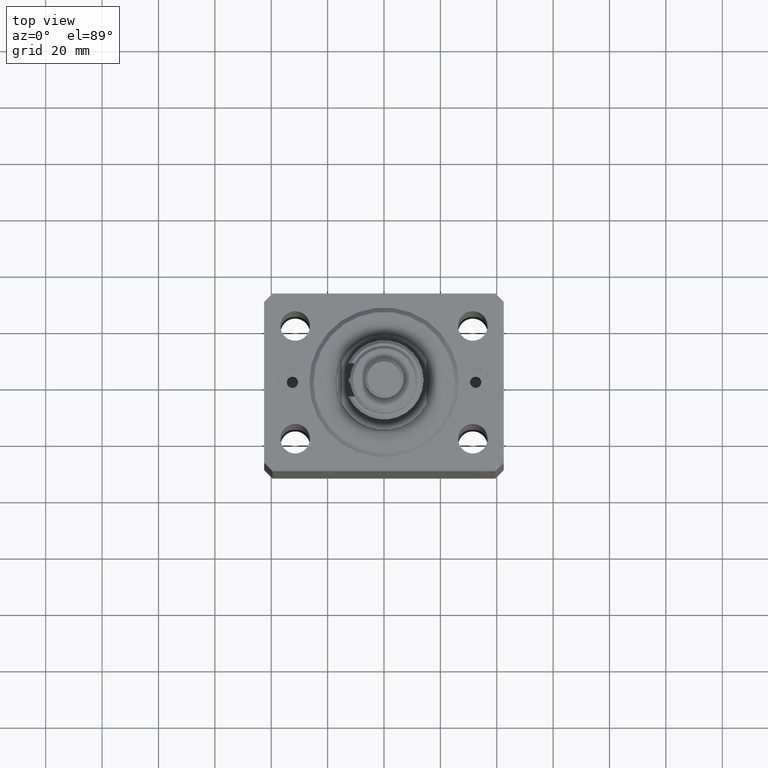
[diagram: clean part render]
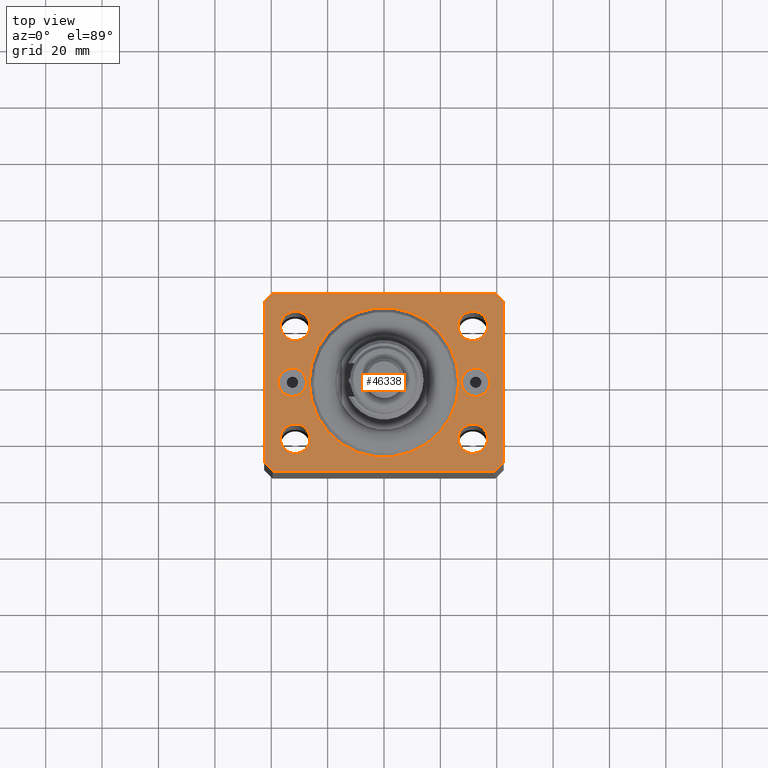
[diagram: same view with one face highlighted and labeled with its STEP entity id]
A machine part, top view. The second image highlights one B-rep face of the part: STEP entity #46338.
In plain terms, the highlighted planar face has unit normal (0, 0, 1).
Its self-contained STEP definition (entity closure, byte-faithful):
#8 = VERTEX_POINT ( 'NONE', #19630 ) ;
#310 = ORIENTED_EDGE ( 'NONE', *, *, #18814, .F. ) ;
#354 = AXIS2_PLACEMENT_3D ( 'NONE', #36166, #14008, #44030 ) ;
#397 = DIRECTION ( 'NONE',  ( 1.000000000000000000, 0.000000000000000000, 0.000000000000000000 ) ) ;
#399 = DIRECTION ( 'NONE',  ( 0.000000000000000000, 0.000000000000000000, 1.000000000000000000 ) ) ;
#455 = AXIS2_PLACEMENT_3D ( 'NONE', #32356, #399, #6638 ) ;
#482 = ORIENTED_EDGE ( 'NONE', *, *, #2937, .F. ) ;
#649 = FACE_BOUND ( 'NONE', #37424, .T. ) ;
#823 = ORIENTED_EDGE ( 'NONE', *, *, #25537, .F. ) ;
#1113 = FACE_BOUND ( 'NONE', #31430, .T. ) ;
#1142 = LINE ( 'NONE', #8542, #14847 ) ;
#1335 = CIRCLE ( 'NONE', #36356, 26.50000000000000355 ) ;
#1363 = CARTESIAN_POINT ( 'NONE',  ( 0.000000000000000000, 0.000000000000000000, 0.000000000000000000 ) ) ;
#1699 = ORIENTED_EDGE ( 'NONE', *, *, #39724, .F. ) ;
#1911 = DIRECTION ( 'NONE',  ( -1.000000000000000000, 8.783410004945795812E-17, 0.000000000000000000 ) ) ;
#2166 = CARTESIAN_POINT ( 'NONE',  ( 31.50000000000000000, 19.99999999999999289, 0.000000000000000000 ) ) ;
#2783 = AXIS2_PLACEMENT_3D ( 'NONE', #3201, #3896, #36556 ) ;
#2800 = ORIENTED_EDGE ( 'NONE', *, *, #35951, .T. ) ;
#2830 = DIRECTION ( 'NONE',  ( 1.000000000000000000, 0.000000000000000000, 0.000000000000000000 ) ) ;
#2937 = EDGE_CURVE ( 'NONE', #33450, #12164, #34560, .T. ) ;
#3023 = EDGE_CURVE ( 'NONE', #31788, #42480, #40152, .T. ) ;
#3201 = CARTESIAN_POINT ( 'NONE',  ( 32.50000000000000000, 0.000000000000000000, 0.000000000000000000 ) ) ;
#3250 = EDGE_CURVE ( 'NONE', #5897, #28921, #35981, .T. ) ;
#3323 = DIRECTION ( 'NONE',  ( 0.7071067811865483499, 0.7071067811865466846, 0.000000000000000000 ) ) ;
#3406 = DIRECTION ( 'NONE',  ( 1.000000000000000000, 0.000000000000000000, 0.000000000000000000 ) ) ;
#3649 = DIRECTION ( 'NONE',  ( -0.7071067811865471286, -0.7071067811865479058, 0.000000000000000000 ) ) ;
#3700 = EDGE_CURVE ( 'NONE', #19918, #16981, #17121, .T. ) ;
#3896 = DIRECTION ( 'NONE',  ( 0.000000000000000000, -0.000000000000000000, -1.000000000000000000 ) ) ;
#3935 = VERTEX_POINT ( 'NONE', #13954 ) ;
#4119 = VERTEX_POINT ( 'NONE', #42044 ) ;
#4765 = VERTEX_POINT ( 'NONE', #28039 ) ;
#5140 = DIRECTION ( 'NONE',  ( 1.000000000000000000, 0.000000000000000000, 0.000000000000000000 ) ) ;
#5470 = VECTOR ( 'NONE', #39626, 1000.000000000000000 ) ;
#5877 = VECTOR ( 'NONE', #43863, 1000.000000000000114 ) ;
#5897 = VERTEX_POINT ( 'NONE', #36055 ) ;
#6193 = ORIENTED_EDGE ( 'NONE', *, *, #3023, .T. ) ;
#6360 = CARTESIAN_POINT ( 'NONE',  ( -36.74999999999999289, -20.00000000000000355, 0.000000000000000000 ) ) ;
#6638 = DIRECTION ( 'NONE',  ( 1.000000000000000000, 0.000000000000000000, 0.000000000000000000 ) ) ;
#6734 = EDGE_CURVE ( 'NONE', #8, #5897, #37577, .T. ) ;
#7400 = ORIENTED_EDGE ( 'NONE', *, *, #12039, .F. ) ;
#7520 = CARTESIAN_POINT ( 'NONE',  ( -39.50000000000000711, 31.50000000000000000, 0.000000000000000000 ) ) ;
#7620 = CARTESIAN_POINT ( 'NONE',  ( 42.50000000000051870, 28.49999999999995381, 0.000000000000000000 ) ) ;
#8046 = DIRECTION ( 'NONE',  ( 0.000000000000000000, 0.000000000000000000, 1.000000000000000000 ) ) ;
#8281 = FACE_OUTER_BOUND ( 'NONE', #20400, .T. ) ;
#8542 = CARTESIAN_POINT ( 'NONE',  ( 42.50000000000000711, -28.50000000000000355, 0.000000000000000000 ) ) ;
#8561 = EDGE_LOOP ( 'NONE', ( #482, #7400 ) ) ;
#8571 = CARTESIAN_POINT ( 'NONE',  ( 26.25000000000000355, 19.99999999999999289, 0.000000000000000000 ) ) ;
#8646 = EDGE_CURVE ( 'NONE', #4765, #3935, #17116, .T. ) ;
#9044 = ORIENTED_EDGE ( 'NONE', *, *, #38149, .F. ) ;
#9942 = EDGE_CURVE ( 'NONE', #24635, #41375, #13387, .T. ) ;
#10808 = CARTESIAN_POINT ( 'NONE',  ( -39.50000000000000711, 31.50000000000000000, 0.000000000000000000 ) ) ;
#11030 = DIRECTION ( 'NONE',  ( 0.000000000000000000, 0.000000000000000000, 1.000000000000000000 ) ) ;
#11036 = LINE ( 'NONE', #10808, #31166 ) ;
#11382 = CARTESIAN_POINT ( 'NONE',  ( 31.49999999999999289, -20.00000000000000355, 0.000000000000000000 ) ) ;
#11395 = VERTEX_POINT ( 'NONE', #19695 ) ;
#11451 = ORIENTED_EDGE ( 'NONE', *, *, #44370, .T. ) ;
#11650 = DIRECTION ( 'NONE',  ( 8.886653596232072440E-15, 1.000000000000000000, 0.000000000000000000 ) ) ;
#11689 = AXIS2_PLACEMENT_3D ( 'NONE', #2166, #24093, #16708 ) ;
#11706 = CARTESIAN_POINT ( 'NONE',  ( 26.24999999999999645, -20.00000000000000355, 0.000000000000000000 ) ) ;
#11783 = CARTESIAN_POINT ( 'NONE',  ( 26.50000000000000355, 0.000000000000000000, 0.000000000000000000 ) ) ;
#11843 = DIRECTION ( 'NONE',  ( 0.000000000000000000, 0.000000000000000000, 1.000000000000000000 ) ) ;
#12039 = EDGE_CURVE ( 'NONE', #12164, #33450, #21024, .T. ) ;
#12106 = DIRECTION ( 'NONE',  ( 1.000000000000000000, 0.000000000000000000, -0.000000000000000000 ) ) ;
#12164 = VERTEX_POINT ( 'NONE', #19702 ) ;
#12602 = DIRECTION ( 'NONE',  ( 1.000000000000000000, 0.000000000000000000, 0.000000000000000000 ) ) ;
#13021 = EDGE_CURVE ( 'NONE', #41375, #24635, #27935, .T. ) ;
#13348 = DIRECTION ( 'NONE',  ( 1.000000000000000000, 0.000000000000000000, 0.000000000000000000 ) ) ;
#13387 = CIRCLE ( 'NONE', #37691, 5.249999999999997335 ) ;
#13645 = ORIENTED_EDGE ( 'NONE', *, *, #33832, .T. ) ;
#13954 = CARTESIAN_POINT ( 'NONE',  ( -37.50000000000000000, 6.123233995736768255E-16, 0.000000000000000000 ) ) ;
#13985 = CIRCLE ( 'NONE', #11689, 5.249999999999997335 ) ;
#13995 = ORIENTED_EDGE ( 'NONE', *, *, #3250, .T. ) ;
#14008 = DIRECTION ( 'NONE',  ( 0.000000000000000000, -0.000000000000000000, -1.000000000000000000 ) ) ;
#14410 = ORIENTED_EDGE ( 'NONE', *, *, #8646, .F. ) ;
#14689 = VERTEX_POINT ( 'NONE', #6360 ) ;
#14752 = ORIENTED_EDGE ( 'NONE', *, *, #20550, .T. ) ;
#14847 = VECTOR ( 'NONE', #11650, 1000.000000000000000 ) ;
#14861 = CARTESIAN_POINT ( 'NONE',  ( -42.50000000000000000, -28.50000000000000000, 0.000000000000000000 ) ) ;
#14969 = VERTEX_POINT ( 'NONE', #19662 ) ;
#15055 = CARTESIAN_POINT ( 'NONE',  ( -26.25000000000000000, 19.99999999999999645, 0.000000000000000000 ) ) ;
#15203 = FACE_BOUND ( 'NONE', #15483, .T. ) ;
#15483 = EDGE_LOOP ( 'NONE', ( #26340, #9044 ) ) ;
#16336 = DIRECTION ( 'NONE',  ( 0.000000000000000000, 0.000000000000000000, 1.000000000000000000 ) ) ;
#16708 = DIRECTION ( 'NONE',  ( 1.000000000000000000, 0.000000000000000000, 0.000000000000000000 ) ) ;
#16893 = CARTESIAN_POINT ( 'NONE',  ( -31.49999999999999289, -20.00000000000000355, 0.000000000000000000 ) ) ;
#16981 = VERTEX_POINT ( 'NONE', #38325 ) ;
#17116 = CIRCLE ( 'NONE', #23184, 5.000000000000000888 ) ;
#17121 = CIRCLE ( 'NONE', #354, 4.999999999999997335 ) ;
#17286 = AXIS2_PLACEMENT_3D ( 'NONE', #20220, #34039, #12602 ) ;
#17388 = DIRECTION ( 'NONE',  ( 0.000000000000000000, 0.000000000000000000, 1.000000000000000000 ) ) ;
#17618 = ORIENTED_EDGE ( 'NONE', *, *, #39111, .T. ) ;
#18590 = VECTOR ( 'NONE', #23031, 1000.000000000000000 ) ;
#18754 = CARTESIAN_POINT ( 'NONE',  ( 0.000000000000000000, 0.000000000000000000, 0.000000000000000000 ) ) ;
#18814 = EDGE_CURVE ( 'NONE', #29501, #40463, #26730, .T. ) ;
#18997 = CARTESIAN_POINT ( 'NONE',  ( -39.50000000000000711, -31.50000000000000000, 0.000000000000000000 ) ) ;
#19630 = CARTESIAN_POINT ( 'NONE',  ( -39.50000000000000711, -31.50000000000000000, 0.000000000000000000 ) ) ;
#19662 = CARTESIAN_POINT ( 'NONE',  ( 36.75000000000000000, 19.99999999999999289, 0.000000000000000000 ) ) ;
#19669 = EDGE_LOOP ( 'NONE', ( #2800, #23469 ) ) ;
#19695 = CARTESIAN_POINT ( 'NONE',  ( -42.50000000000000000, 28.50000000000000000, 0.000000000000000000 ) ) ;
#19702 = CARTESIAN_POINT ( 'NONE',  ( -36.75000000000000000, 19.99999999999999645, 0.000000000000000000 ) ) ;
#19918 = VERTEX_POINT ( 'NONE', #32101 ) ;
#20220 = CARTESIAN_POINT ( 'NONE',  ( -31.49999999999999289, -20.00000000000000355, 0.000000000000000000 ) ) ;
#20400 = EDGE_LOOP ( 'NONE', ( #6193, #11451, #20731, #14752, #26212, #13995, #13645, #17618 ) ) ;
#20550 = EDGE_CURVE ( 'NONE', #32286, #8, #43209, .T. ) ;
#20731 = ORIENTED_EDGE ( 'NONE', *, *, #38517, .T. ) ;
#20873 = LINE ( 'NONE', #46854, #40890 ) ;
#21024 = CIRCLE ( 'NONE', #455, 5.250000000000000888 ) ;
#21333 = DIRECTION ( 'NONE',  ( 0.000000000000000000, -1.000000000000000000, 0.000000000000000000 ) ) ;
#21632 = AXIS2_PLACEMENT_3D ( 'NONE', #42090, #16336, #5140 ) ;
#21933 = EDGE_LOOP ( 'NONE', ( #14410, #35752 ) ) ;
#22021 = CARTESIAN_POINT ( 'NONE',  ( 39.50000000000056843, 31.49999999999999289, 0.000000000000000000 ) ) ;
#22571 = AXIS2_PLACEMENT_3D ( 'NONE', #11382, #40230, #31959 ) ;
#23031 = DIRECTION ( 'NONE',  ( 1.000000000000000000, 0.000000000000000000, 0.000000000000000000 ) ) ;
#23184 = AXIS2_PLACEMENT_3D ( 'NONE', #32063, #43732, #43044 ) ;
#23469 = ORIENTED_EDGE ( 'NONE', *, *, #3700, .T. ) ;
#24093 = DIRECTION ( 'NONE',  ( 0.000000000000000000, 0.000000000000000000, 1.000000000000000000 ) ) ;
#24635 = VERTEX_POINT ( 'NONE', #11706 ) ;
#24667 = VECTOR ( 'NONE', #3323, 1000.000000000000000 ) ;
#24759 = CARTESIAN_POINT ( 'NONE',  ( 31.50000000000000000, 19.99999999999999289, 0.000000000000000000 ) ) ;
#24876 = ORIENTED_EDGE ( 'NONE', *, *, #9942, .F. ) ;
#25073 = CARTESIAN_POINT ( 'NONE',  ( -42.50000000000000000, -28.50000000000000000, 0.000000000000000000 ) ) ;
#25097 = CARTESIAN_POINT ( 'NONE',  ( 0.000000000000000000, 0.000000000000000000, 0.000000000000000000 ) ) ;
#25118 = CARTESIAN_POINT ( 'NONE',  ( -26.50000000000000355, 3.245314017740485765E-15, 0.000000000000000000 ) ) ;
#25537 = EDGE_CURVE ( 'NONE', #14969, #46085, #13985, .T. ) ;
#25538 = DIRECTION ( 'NONE',  ( 1.000000000000000000, 0.000000000000000000, 0.000000000000000000 ) ) ;
#26152 = FACE_BOUND ( 'NONE', #42677, .T. ) ;
#26212 = ORIENTED_EDGE ( 'NONE', *, *, #6734, .T. ) ;
#26340 = ORIENTED_EDGE ( 'NONE', *, *, #26347, .F. ) ;
#26347 = EDGE_CURVE ( 'NONE', #4119, #14689, #39901, .T. ) ;
#26472 = CARTESIAN_POINT ( 'NONE',  ( 39.50000000000056843, 31.49999999999999289, 0.000000000000000000 ) ) ;
#26730 = CIRCLE ( 'NONE', #39717, 26.50000000000000355 ) ;
#27935 = CIRCLE ( 'NONE', #22571, 5.249999999999997335 ) ;
#27989 = DIRECTION ( 'NONE',  ( 0.000000000000000000, 0.000000000000000000, 1.000000000000000000 ) ) ;
#28039 = CARTESIAN_POINT ( 'NONE',  ( -27.50000000000000000, 0.000000000000000000, 0.000000000000000000 ) ) ;
#28921 = VERTEX_POINT ( 'NONE', #41436 ) ;
#28930 = CIRCLE ( 'NONE', #32743, 5.249999999999997335 ) ;
#29340 = CARTESIAN_POINT ( 'NONE',  ( -32.50000000000000000, 0.000000000000000000, 0.000000000000000000 ) ) ;
#29501 = VERTEX_POINT ( 'NONE', #25118 ) ;
#29975 = AXIS2_PLACEMENT_3D ( 'NONE', #16893, #31409, #2830 ) ;
#30597 = CARTESIAN_POINT ( 'NONE',  ( 36.74999999999999289, -20.00000000000000355, 0.000000000000000000 ) ) ;
#31166 = VECTOR ( 'NONE', #3649, 1000.000000000000000 ) ;
#31308 = DIRECTION ( 'NONE',  ( 1.000000000000000000, 0.000000000000000000, 0.000000000000000000 ) ) ;
#31409 = DIRECTION ( 'NONE',  ( 0.000000000000000000, 0.000000000000000000, 1.000000000000000000 ) ) ;
#31430 = EDGE_LOOP ( 'NONE', ( #37592, #24876 ) ) ;
#31498 = EDGE_CURVE ( 'NONE', #3935, #4765, #37755, .T. ) ;
#31788 = VERTEX_POINT ( 'NONE', #26472 ) ;
#31959 = DIRECTION ( 'NONE',  ( 1.000000000000000000, 0.000000000000000000, 0.000000000000000000 ) ) ;
#32063 = CARTESIAN_POINT ( 'NONE',  ( -32.50000000000000000, 0.000000000000000000, 0.000000000000000000 ) ) ;
#32101 = CARTESIAN_POINT ( 'NONE',  ( 27.50000000000000355, 6.123233995736762338E-16, 0.000000000000000000 ) ) ;
#32286 = VERTEX_POINT ( 'NONE', #14861 ) ;
#32356 = CARTESIAN_POINT ( 'NONE',  ( -31.50000000000000000, 19.99999999999999645, 0.000000000000000000 ) ) ;
#32476 = CIRCLE ( 'NONE', #17286, 5.250000000000000888 ) ;
#32743 = AXIS2_PLACEMENT_3D ( 'NONE', #24759, #17388, #13348 ) ;
#32867 = CARTESIAN_POINT ( 'NONE',  ( 39.50000000000000711, -31.50000000000000000, 0.000000000000000000 ) ) ;
#33450 = VERTEX_POINT ( 'NONE', #15055 ) ;
#33832 = EDGE_CURVE ( 'NONE', #28921, #46533, #1142, .T. ) ;
#34015 = PLANE ( 'NONE',  #41876 ) ;
#34039 = DIRECTION ( 'NONE',  ( 0.000000000000000000, 0.000000000000000000, 1.000000000000000000 ) ) ;
#34560 = CIRCLE ( 'NONE', #21632, 5.250000000000000888 ) ;
#34659 = CARTESIAN_POINT ( 'NONE',  ( 31.49999999999999289, -20.00000000000000355, 0.000000000000000000 ) ) ;
#35752 = ORIENTED_EDGE ( 'NONE', *, *, #31498, .F. ) ;
#35951 = EDGE_CURVE ( 'NONE', #16981, #19918, #40822, .T. ) ;
#35981 = LINE ( 'NONE', #32867, #24667 ) ;
#35998 = LINE ( 'NONE', #7620, #5877 ) ;
#36055 = CARTESIAN_POINT ( 'NONE',  ( 39.50000000000000711, -31.50000000000000000, 0.000000000000000000 ) ) ;
#36166 = CARTESIAN_POINT ( 'NONE',  ( 32.50000000000000000, 0.000000000000000000, 0.000000000000000000 ) ) ;
#36356 = AXIS2_PLACEMENT_3D ( 'NONE', #25097, #11030, #3406 ) ;
#36556 = DIRECTION ( 'NONE',  ( 1.000000000000000000, 0.000000000000000000, 0.000000000000000000 ) ) ;
#37424 = EDGE_LOOP ( 'NONE', ( #1699, #310 ) ) ;
#37577 = LINE ( 'NONE', #18997, #18590 ) ;
#37592 = ORIENTED_EDGE ( 'NONE', *, *, #13021, .F. ) ;
#37691 = AXIS2_PLACEMENT_3D ( 'NONE', #34659, #27989, #31308 ) ;
#37755 = CIRCLE ( 'NONE', #44605, 5.000000000000000888 ) ;
#38149 = EDGE_CURVE ( 'NONE', #14689, #4119, #32476, .T. ) ;
#38325 = CARTESIAN_POINT ( 'NONE',  ( 37.50000000000000000, 0.000000000000000000, 0.000000000000000000 ) ) ;
#38517 = EDGE_CURVE ( 'NONE', #11395, #32286, #20873, .T. ) ;
#39111 = EDGE_CURVE ( 'NONE', #46533, #31788, #35998, .T. ) ;
#39556 = ORIENTED_EDGE ( 'NONE', *, *, #46458, .F. ) ;
#39626 = DIRECTION ( 'NONE',  ( 0.7071067811865471286, -0.7071067811865479058, 0.000000000000000000 ) ) ;
#39717 = AXIS2_PLACEMENT_3D ( 'NONE', #18754, #11843, #397 ) ;
#39724 = EDGE_CURVE ( 'NONE', #40463, #29501, #1335, .T. ) ;
#39901 = CIRCLE ( 'NONE', #29975, 5.250000000000000888 ) ;
#40152 = LINE ( 'NONE', #22021, #40657 ) ;
#40230 = DIRECTION ( 'NONE',  ( 0.000000000000000000, 0.000000000000000000, 1.000000000000000000 ) ) ;
#40463 = VERTEX_POINT ( 'NONE', #11783 ) ;
#40473 = CARTESIAN_POINT ( 'NONE',  ( 42.50000000000051870, 28.49999999999995381, 0.000000000000000000 ) ) ;
#40657 = VECTOR ( 'NONE', #1911, 1000.000000000000000 ) ;
#40710 = FACE_BOUND ( 'NONE', #21933, .T. ) ;
#40822 = CIRCLE ( 'NONE', #2783, 4.999999999999997335 ) ;
#40890 = VECTOR ( 'NONE', #21333, 1000.000000000000000 ) ;
#40957 = FACE_BOUND ( 'NONE', #19669, .T. ) ;
#41375 = VERTEX_POINT ( 'NONE', #30597 ) ;
#41436 = CARTESIAN_POINT ( 'NONE',  ( 42.50000000000000711, -28.50000000000000355, 0.000000000000000000 ) ) ;
#41876 = AXIS2_PLACEMENT_3D ( 'NONE', #1363, #8046, #12106 ) ;
#42044 = CARTESIAN_POINT ( 'NONE',  ( -26.24999999999999289, -20.00000000000000355, 0.000000000000000000 ) ) ;
#42090 = CARTESIAN_POINT ( 'NONE',  ( -31.50000000000000000, 19.99999999999999645, 0.000000000000000000 ) ) ;
#42480 = VERTEX_POINT ( 'NONE', #7520 ) ;
#42677 = EDGE_LOOP ( 'NONE', ( #823, #39556 ) ) ;
#43044 = DIRECTION ( 'NONE',  ( 1.000000000000000000, 0.000000000000000000, 0.000000000000000000 ) ) ;
#43209 = LINE ( 'NONE', #25073, #5470 ) ;
#43436 = DIRECTION ( 'NONE',  ( 0.000000000000000000, 0.000000000000000000, 1.000000000000000000 ) ) ;
#43732 = DIRECTION ( 'NONE',  ( 0.000000000000000000, 0.000000000000000000, 1.000000000000000000 ) ) ;
#43863 = DIRECTION ( 'NONE',  ( -0.7071067811865364705, 0.7071067811865584529, 0.000000000000000000 ) ) ;
#44030 = DIRECTION ( 'NONE',  ( 1.000000000000000000, 0.000000000000000000, 0.000000000000000000 ) ) ;
#44289 = FACE_BOUND ( 'NONE', #8561, .T. ) ;
#44370 = EDGE_CURVE ( 'NONE', #42480, #11395, #11036, .T. ) ;
#44605 = AXIS2_PLACEMENT_3D ( 'NONE', #29340, #43436, #25538 ) ;
#46085 = VERTEX_POINT ( 'NONE', #8571 ) ;
#46338 = ADVANCED_FACE ( 'NONE', ( #8281, #44289, #26152, #1113, #15203, #649, #40710, #40957 ), #34015, .T. ) ;
#46458 = EDGE_CURVE ( 'NONE', #46085, #14969, #28930, .T. ) ;
#46533 = VERTEX_POINT ( 'NONE', #40473 ) ;
#46854 = CARTESIAN_POINT ( 'NONE',  ( -42.50000000000000000, 28.50000000000000000, 0.000000000000000000 ) ) ;